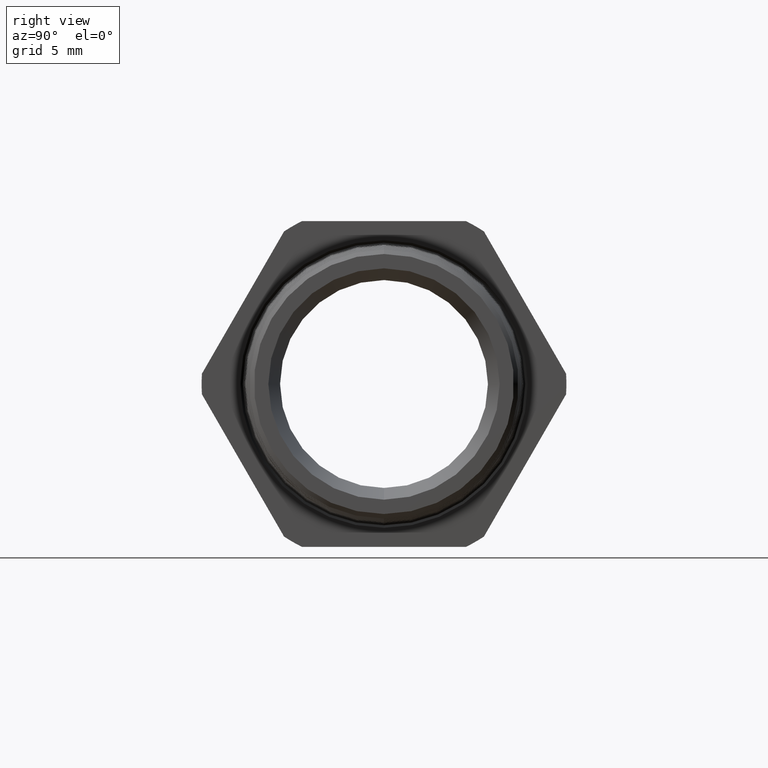
[diagram: clean part render]
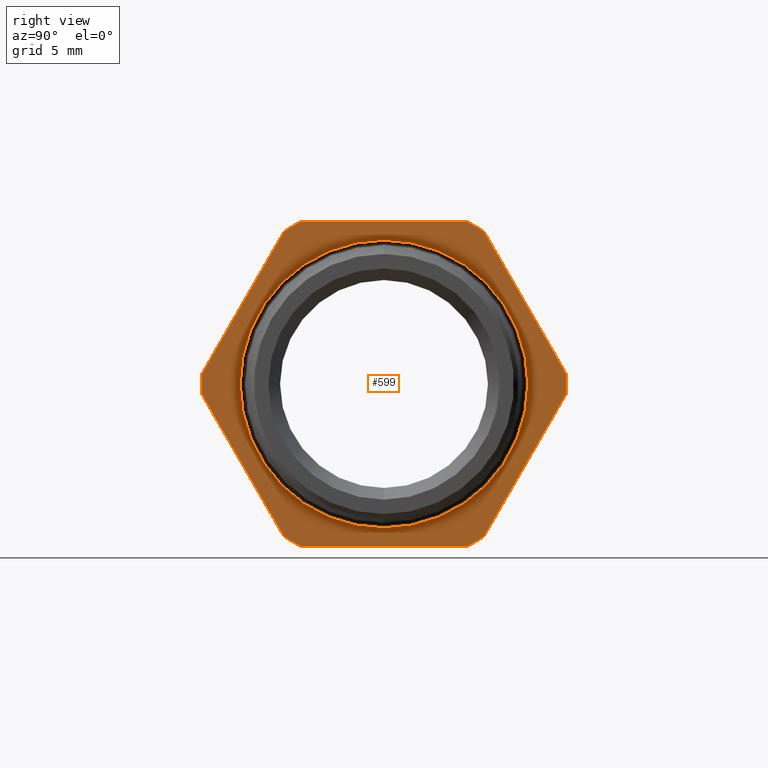
[diagram: same view with one face highlighted and labeled with its STEP entity id]
A machine part, right view. The second image highlights one B-rep face of the part: STEP entity #599.
In plain terms, the highlighted planar face has unit normal (-1, 0, 0).
Its self-contained STEP definition (entity closure, byte-faithful):
#510 = ORIENTED_EDGE ( 'NONE', *, *, #511, .F. ) ;
#511 = EDGE_CURVE ( 'NONE', #518, #591, #1783, .T. ) ;
#512 = EDGE_LOOP ( 'NONE', ( #653, #670 ) ) ;
#515 = EDGE_LOOP ( 'NONE', ( #516, #520, #523, #526, #529, #566, #569, #601, #583, #586, #589, #510 ) ) ;
#516 = ORIENTED_EDGE ( 'NONE', *, *, #517, .T. ) ;
#517 = EDGE_CURVE ( 'NONE', #518, #519, #1768, .T. ) ;
#518 = VERTEX_POINT ( 'NONE', #1764 ) ;
#519 = VERTEX_POINT ( 'NONE', #1763 ) ;
#520 = ORIENTED_EDGE ( 'NONE', *, *, #521, .F. ) ;
#521 = EDGE_CURVE ( 'NONE', #522, #519, #1762, .T. ) ;
#522 = VERTEX_POINT ( 'NONE', #1757 ) ;
#523 = ORIENTED_EDGE ( 'NONE', *, *, #524, .T. ) ;
#524 = EDGE_CURVE ( 'NONE', #522, #525, #1756, .T. ) ;
#525 = VERTEX_POINT ( 'NONE', #1814 ) ;
#526 = ORIENTED_EDGE ( 'NONE', *, *, #527, .F. ) ;
#527 = EDGE_CURVE ( 'NONE', #528, #525, #1813, .T. ) ;
#528 = VERTEX_POINT ( 'NONE', #1808 ) ;
#529 = ORIENTED_EDGE ( 'NONE', *, *, #565, .T. ) ;
#530 = VERTEX_POINT ( 'NONE', #1807 ) ;
#565 = EDGE_CURVE ( 'NONE', #528, #530, #1877, .T. ) ;
#566 = ORIENTED_EDGE ( 'NONE', *, *, #567, .F. ) ;
#567 = EDGE_CURVE ( 'NONE', #568, #530, #1873, .T. ) ;
#568 = VERTEX_POINT ( 'NONE', #1868 ) ;
#569 = ORIENTED_EDGE ( 'NONE', *, *, #570, .T. ) ;
#570 = EDGE_CURVE ( 'NONE', #568, #600, #1867, .T. ) ;
#583 = ORIENTED_EDGE ( 'NONE', *, *, #584, .T. ) ;
#584 = EDGE_CURVE ( 'NONE', #603, #585, #1898, .T. ) ;
#585 = VERTEX_POINT ( 'NONE', #1894 ) ;
#586 = ORIENTED_EDGE ( 'NONE', *, *, #587, .F. ) ;
#587 = EDGE_CURVE ( 'NONE', #588, #585, #1893, .T. ) ;
#588 = VERTEX_POINT ( 'NONE', #1888 ) ;
#589 = ORIENTED_EDGE ( 'NONE', *, *, #590, .T. ) ;
#590 = EDGE_CURVE ( 'NONE', #588, #591, #1887, .T. ) ;
#591 = VERTEX_POINT ( 'NONE', #1883 ) ;
#599 = ADVANCED_FACE ( 'NONE', ( #1938, #1937 ), #1936, .F. ) ;
#600 = VERTEX_POINT ( 'NONE', #1931 ) ;
#601 = ORIENTED_EDGE ( 'NONE', *, *, #602, .F. ) ;
#602 = EDGE_CURVE ( 'NONE', #603, #600, #1930, .T. ) ;
#603 = VERTEX_POINT ( 'NONE', #1925 ) ;
#653 = ORIENTED_EDGE ( 'NONE', *, *, #675, .F. ) ;
#670 = ORIENTED_EDGE ( 'NONE', *, *, #3795, .F. ) ;
#675 = EDGE_CURVE ( 'NONE', #3785, #3779, #2098, .T. ) ;
#1755 = CARTESIAN_POINT ( 'NONE',  ( 0.0000000000000000000, -0.2370589800028674900, -0.4700000000000000300 ) ) ;
#1756 = LINE ( 'NONE', #1755, #1816 ) ;
#1757 = CARTESIAN_POINT ( 'NONE',  ( 0.0000000000000000000, -0.2370589800028674300, -0.4699999999999999700 ) ) ;
#1758 = DIRECTION ( 'NONE',  ( 0.0000000000000000000, 0.0000000000000000000, 1.000000000000000000 ) ) ;
#1759 = DIRECTION ( 'NONE',  ( -1.000000000000000000, 0.0000000000000000000, 0.0000000000000000000 ) ) ;
#1760 = CARTESIAN_POINT ( 'NONE',  ( 0.0000000000000000000, 0.0000000000000000000, 0.0000000000000000000 ) ) ;
#1761 = AXIS2_PLACEMENT_3D ( 'NONE', #1760, #1759, #1758 ) ;
#1762 = CIRCLE ( 'NONE', #1761, 0.5263999999999999800 ) ;
#1763 = CARTESIAN_POINT ( 'NONE',  ( 0.0000000000000000000, -0.2885024497772523700, -0.4402990988777105200 ) ) ;
#1764 = CARTESIAN_POINT ( 'NONE',  ( 0.0000000000000000000, -0.5255614297801198800, -0.02970090112228954500 ) ) ;
#1765 = DIRECTION ( 'NONE',  ( 0.0000000000000000000, 0.5000000000000002200, -0.8660254037844386000 ) ) ;
#1766 = VECTOR ( 'NONE', #1765, 39.37007874015747400 ) ;
#1767 = CARTESIAN_POINT ( 'NONE',  ( 0.0000000000000000000, -0.5255614297801198800, -0.02970090112228954500 ) ) ;
#1768 = LINE ( 'NONE', #1767, #1766 ) ;
#1775 = DIRECTION ( 'NONE',  ( 0.0000000000000000000, 0.0000000000000000000, 1.000000000000000000 ) ) ;
#1776 = DIRECTION ( 'NONE',  ( -1.000000000000000000, 0.0000000000000000000, 0.0000000000000000000 ) ) ;
#1777 = CARTESIAN_POINT ( 'NONE',  ( 0.0000000000000000000, 0.0000000000000000000, 0.0000000000000000000 ) ) ;
#1778 = AXIS2_PLACEMENT_3D ( 'NONE', #1777, #1776, #1775 ) ;
#1783 = CIRCLE ( 'NONE', #1778, 0.5263999999999999800 ) ;
#1807 = CARTESIAN_POINT ( 'NONE',  ( 0.0000000000000000000, 0.5255614297801198800, -0.02970090112228947900 ) ) ;
#1808 = CARTESIAN_POINT ( 'NONE',  ( 0.0000000000000000000, 0.2885024497772525900, -0.4402990988777104600 ) ) ;
#1809 = DIRECTION ( 'NONE',  ( 0.0000000000000000000, 0.0000000000000000000, 1.000000000000000000 ) ) ;
#1810 = DIRECTION ( 'NONE',  ( -1.000000000000000000, 0.0000000000000000000, 0.0000000000000000000 ) ) ;
#1811 = CARTESIAN_POINT ( 'NONE',  ( 0.0000000000000000000, 0.0000000000000000000, 0.0000000000000000000 ) ) ;
#1812 = AXIS2_PLACEMENT_3D ( 'NONE', #1811, #1810, #1809 ) ;
#1813 = CIRCLE ( 'NONE', #1812, 0.5263999999999999800 ) ;
#1814 = CARTESIAN_POINT ( 'NONE',  ( 0.0000000000000000000, 0.2370589800028674900, -0.4700000000000000300 ) ) ;
#1815 = DIRECTION ( 'NONE',  ( 0.0000000000000000000, 1.000000000000000000, 0.0000000000000000000 ) ) ;
#1816 = VECTOR ( 'NONE', #1815, 39.37007874015748100 ) ;
#1864 = DIRECTION ( 'NONE',  ( 0.0000000000000000000, -0.5000000000000001100, 0.8660254037844386000 ) ) ;
#1865 = VECTOR ( 'NONE', #1864, 39.37007874015748100 ) ;
#1866 = CARTESIAN_POINT ( 'NONE',  ( 0.0000000000000000000, 0.5255614297801198800, 0.02970090112228930500 ) ) ;
#1867 = LINE ( 'NONE', #1866, #1865 ) ;
#1868 = CARTESIAN_POINT ( 'NONE',  ( 0.0000000000000000000, 0.5255614297801198800, 0.02970090112228932300 ) ) ;
#1869 = DIRECTION ( 'NONE',  ( 0.0000000000000000000, 0.0000000000000000000, 1.000000000000000000 ) ) ;
#1870 = DIRECTION ( 'NONE',  ( -1.000000000000000000, 0.0000000000000000000, 0.0000000000000000000 ) ) ;
#1871 = CARTESIAN_POINT ( 'NONE',  ( 0.0000000000000000000, 0.0000000000000000000, 0.0000000000000000000 ) ) ;
#1872 = AXIS2_PLACEMENT_3D ( 'NONE', #1871, #1870, #1869 ) ;
#1873 = CIRCLE ( 'NONE', #1872, 0.5263999999999999800 ) ;
#1874 = DIRECTION ( 'NONE',  ( 0.0000000000000000000, 0.4999999999999997200, 0.8660254037844388200 ) ) ;
#1875 = VECTOR ( 'NONE', #1874, 39.37007874015748900 ) ;
#1876 = CARTESIAN_POINT ( 'NONE',  ( 0.0000000000000000000, 0.2885024497772525300, -0.4402990988777104600 ) ) ;
#1877 = LINE ( 'NONE', #1876, #1875 ) ;
#1883 = CARTESIAN_POINT ( 'NONE',  ( 0.0000000000000000000, -0.5255614297801198800, 0.02970090112228944400 ) ) ;
#1884 = DIRECTION ( 'NONE',  ( 0.0000000000000000000, -0.5000000000000001100, -0.8660254037844384900 ) ) ;
#1885 = VECTOR ( 'NONE', #1884, 39.37007874015748900 ) ;
#1886 = CARTESIAN_POINT ( 'NONE',  ( 0.0000000000000000000, -0.2885024497772521500, 0.4402990988777105700 ) ) ;
#1887 = LINE ( 'NONE', #1886, #1885 ) ;
#1888 = CARTESIAN_POINT ( 'NONE',  ( 0.0000000000000000000, -0.2885024497772521500, 0.4402990988777105700 ) ) ;
#1889 = DIRECTION ( 'NONE',  ( 0.0000000000000000000, 0.0000000000000000000, 1.000000000000000000 ) ) ;
#1890 = DIRECTION ( 'NONE',  ( -1.000000000000000000, 0.0000000000000000000, 0.0000000000000000000 ) ) ;
#1891 = CARTESIAN_POINT ( 'NONE',  ( 0.0000000000000000000, 0.0000000000000000000, 0.0000000000000000000 ) ) ;
#1892 = AXIS2_PLACEMENT_3D ( 'NONE', #1891, #1890, #1889 ) ;
#1893 = CIRCLE ( 'NONE', #1892, 0.5263999999999999800 ) ;
#1894 = CARTESIAN_POINT ( 'NONE',  ( 0.0000000000000000000, -0.2370589800028677400, 0.4699999999999999200 ) ) ;
#1895 = DIRECTION ( 'NONE',  ( 0.0000000000000000000, -1.000000000000000000, 0.0000000000000000000 ) ) ;
#1896 = VECTOR ( 'NONE', #1895, 39.37007874015748100 ) ;
#1897 = CARTESIAN_POINT ( 'NONE',  ( 0.0000000000000000000, 0.2370589800028677400, 0.4699999999999999200 ) ) ;
#1898 = LINE ( 'NONE', #1897, #1896 ) ;
#1925 = CARTESIAN_POINT ( 'NONE',  ( 0.0000000000000000000, 0.2370589800028677600, 0.4699999999999998600 ) ) ;
#1926 = DIRECTION ( 'NONE',  ( 0.0000000000000000000, 0.0000000000000000000, 1.000000000000000000 ) ) ;
#1927 = DIRECTION ( 'NONE',  ( -1.000000000000000000, 0.0000000000000000000, 0.0000000000000000000 ) ) ;
#1928 = CARTESIAN_POINT ( 'NONE',  ( 0.0000000000000000000, 0.0000000000000000000, 0.0000000000000000000 ) ) ;
#1929 = AXIS2_PLACEMENT_3D ( 'NONE', #1928, #1927, #1926 ) ;
#1930 = CIRCLE ( 'NONE', #1929, 0.5263999999999999800 ) ;
#1931 = CARTESIAN_POINT ( 'NONE',  ( 0.0000000000000000000, 0.2885024497772522000, 0.4402990988777106800 ) ) ;
#1932 = DIRECTION ( 'NONE',  ( 0.0000000000000000000, 0.0000000000000000000, 1.000000000000000000 ) ) ;
#1933 = DIRECTION ( 'NONE',  ( -1.000000000000000000, 0.0000000000000000000, 0.0000000000000000000 ) ) ;
#1934 = CARTESIAN_POINT ( 'NONE',  ( 0.0000000000000000000, 0.5263999999999999800, 0.0000000000000000000 ) ) ;
#1935 = AXIS2_PLACEMENT_3D ( 'NONE', #1934, #1933, #1932 ) ;
#1936 = PLANE ( 'NONE',  #1935 ) ;
#1937 = FACE_BOUND ( 'NONE', #512, .T. ) ;
#1938 = FACE_OUTER_BOUND ( 'NONE', #515, .T. ) ;
#2094 = DIRECTION ( 'NONE',  ( 0.0000000000000000000, 0.0000000000000000000, 1.000000000000000000 ) ) ;
#2095 = DIRECTION ( 'NONE',  ( 1.000000000000000000, 0.0000000000000000000, 0.0000000000000000000 ) ) ;
#2096 = CARTESIAN_POINT ( 'NONE',  ( 0.0000000000000000000, 0.0000000000000000000, 0.0000000000000000000 ) ) ;
#2097 = AXIS2_PLACEMENT_3D ( 'NONE', #2096, #2095, #2094 ) ;
#2098 = CIRCLE ( 'NONE', #2097, 0.4149999999999998100 ) ;
#3259 = CARTESIAN_POINT ( 'NONE',  ( 0.0000000000000000000, 0.0000000000000000000, -0.4149999999999998100 ) ) ;
#3261 = CARTESIAN_POINT ( 'NONE',  ( 0.0000000000000000000, 5.082284216461513200E-017, 0.4149999999999998100 ) ) ;
#3303 = DIRECTION ( 'NONE',  ( 0.0000000000000000000, 0.0000000000000000000, 1.000000000000000000 ) ) ;
#3304 = DIRECTION ( 'NONE',  ( 1.000000000000000000, 0.0000000000000000000, 0.0000000000000000000 ) ) ;
#3305 = CARTESIAN_POINT ( 'NONE',  ( 0.0000000000000000000, 0.0000000000000000000, 0.0000000000000000000 ) ) ;
#3306 = AXIS2_PLACEMENT_3D ( 'NONE', #3305, #3304, #3303 ) ;
#3307 = CIRCLE ( 'NONE', #3306, 0.4149999999999998100 ) ;
#3779 = VERTEX_POINT ( 'NONE', #3261 ) ;
#3785 = VERTEX_POINT ( 'NONE', #3259 ) ;
#3795 = EDGE_CURVE ( 'NONE', #3779, #3785, #3307, .T. ) ;